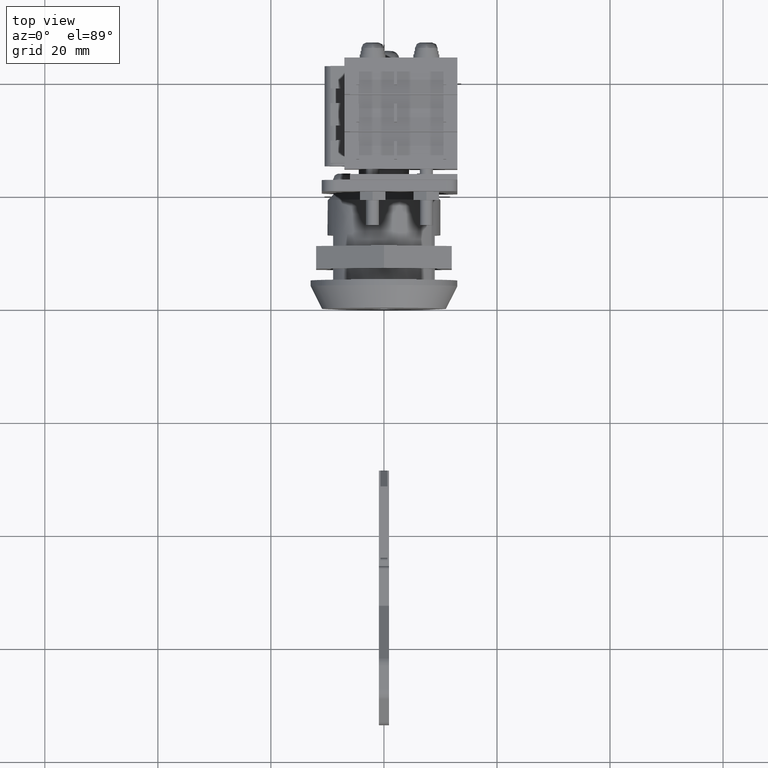
[diagram: clean part render]
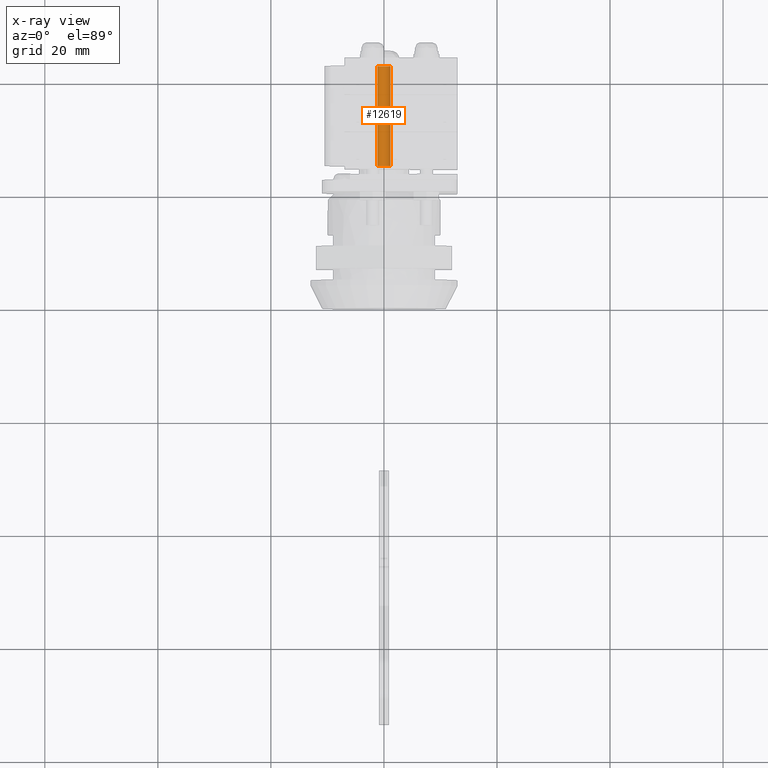
[diagram: x-ray — body ghosted, one internal face saturated and labeled with its STEP entity id]
A machine part, top view, then the same camera in x-ray: the body is ghosted and one INTERNAL B-rep face — a face not visible from any outside direction — is saturated and labeled: STEP entity #12619.
In plain terms, the highlighted face is a freeform B-spline surface patch.
Its self-contained STEP definition (entity closure, byte-faithful):
#12517=CARTESIAN_POINT('',(24.783483075000099,-1.141960955318216,0.135739369855272));
#12518=CARTESIAN_POINT('',(24.783483075000099,-1.145845757765897,0.103056937933674));
#12519=CARTESIAN_POINT('',(24.783483075000099,-1.147855018185147,0.070205820465085));
#12520=CARTESIAN_POINT('',(24.783483075000095,-1.218060838650232,-1.077649197720061));
#12521=CARTESIAN_POINT('',(24.783483075000099,-0.070205820465086,-1.147855018185147));
#12522=CARTESIAN_POINT('',(24.783483075000095,1.077649197720061,-1.218060838650233));
#12523=CARTESIAN_POINT('',(24.783483075000099,1.147855018185147,-0.070205820465086));
#12524=CARTESIAN_POINT('',(43.379542423125031,-1.141960955318216,0.135739369855272));
#12525=CARTESIAN_POINT('',(43.379542423125010,-1.145845757765897,0.103056937933674));
#12526=CARTESIAN_POINT('',(43.379542423125010,-1.147855018185147,0.070205820465085));
#12527=CARTESIAN_POINT('',(43.379542423125024,-1.218060838650232,-1.077649197720061));
#12528=CARTESIAN_POINT('',(43.379542423125010,-0.070205820465086,-1.147855018185147));
#12529=CARTESIAN_POINT('',(43.379542423125024,1.077649197720061,-1.218060838650233));
#12530=CARTESIAN_POINT('',(43.379542423125010,1.147855018185147,-0.070205820465086));
#12538=(BOUNDED_SURFACE()B_SPLINE_SURFACE(2,1,((#12517,#12524),(#12518,#12525),(#12519,#12526),(#12520,#12527),(#12521,#12528),(#12522,#12529),(#12523,#12530)),.UNSPECIFIED.,.F.,.F.,.U.)B_SPLINE_SURFACE_WITH_KNOTS((3,2,2,3),(2,2),(3.078760800517997,3.141592653589793,4.712388980384690,6.283185307179586),(0.0,18.596059348124921),.UNSPECIFIED.)GEOMETRIC_REPRESENTATION_ITEM()RATIONAL_B_SPLINE_SURFACE(((0.977505800795127,0.977505800795127),(0.988284271247462,0.988284271247462),(1.0,1.0),(0.707106781186548,0.707106781186548),(1.0,1.0),(0.707106781186548,0.707106781186548),(1.0,1.0)))REPRESENTATION_ITEM('')SURFACE());
#12539=CARTESIAN_POINT('',(25.225983000000099,-1.141960955238292,0.135739370527664));
#12540=VERTEX_POINT('',#12539);
#12541=CARTESIAN_POINT('',(25.225983000000099,0.0,-1.150000000000000));
#12542=VERTEX_POINT('',#12541);
#12543=CARTESIAN_POINT('',(25.225983000000102,-1.141960955238292,0.135739370527664));
#12544=CARTESIAN_POINT('',(25.225983000000102,-1.150000000000000,0.068107738279197));
#12545=CARTESIAN_POINT('',(25.225983000000099,-1.150000000000000,-1.110223E-016));
#12546=CARTESIAN_POINT('',(25.225983000000102,-1.150000000000000,-1.150000000000000));
#12547=CARTESIAN_POINT('',(25.225983000000099,0.0,-1.150000000000000));
#12555=(BOUNDED_CURVE()B_SPLINE_CURVE(2,(#12543,#12544,#12545,#12546,#12547),.UNSPECIFIED.,.F.,.U.)B_SPLINE_CURVE_WITH_KNOTS((3,2,3),(0.229562473316624,0.250000000000000,0.500000000000000),.UNSPECIFIED.)CURVE()GEOMETRIC_REPRESENTATION_ITEM()RATIONAL_B_SPLINE_CURVE((0.956026753797799,0.976055948100481,1.0,0.707106781186547,1.0))REPRESENTATION_ITEM(''));
#12556=EDGE_CURVE('',#12540,#12542,#12555,.T.);
#12557=ORIENTED_EDGE('',*,*,#12556,.F.);
#12558=CARTESIAN_POINT('',(42.925980000000003,-1.141960955238292,0.135739370527664));
#12559=VERTEX_POINT('',#12558);
#12560=CARTESIAN_POINT('',(25.225983000000099,-1.141960955238292,0.135739370527664));
#12561=CARTESIAN_POINT('',(42.925980000000003,-1.141960955238292,0.135739370527664));
#12562=QUASI_UNIFORM_CURVE('',1,(#12560,#12561),.UNSPECIFIED.,.F.,.U.);
#12563=EDGE_CURVE('',#12540,#12559,#12562,.T.);
#12564=ORIENTED_EDGE('',*,*,#12563,.T.);
#12565=CARTESIAN_POINT('',(42.925980000000003,0.0,-1.150000000000000));
#12566=VERTEX_POINT('',#12565);
#12567=CARTESIAN_POINT('',(42.925979999999996,-1.141960955238292,0.135739370527664));
#12568=CARTESIAN_POINT('',(42.925980000000003,-1.150000000000000,0.068107738279197));
#12569=CARTESIAN_POINT('',(42.925980000000003,-1.150000000000000,-1.110223E-016));
#12570=CARTESIAN_POINT('',(42.925979999999996,-1.150000000000000,-1.150000000000000));
#12571=CARTESIAN_POINT('',(42.925980000000003,0.0,-1.150000000000000));
#12579=(BOUNDED_CURVE()B_SPLINE_CURVE(2,(#12567,#12568,#12569,#12570,#12571),.UNSPECIFIED.,.F.,.U.)B_SPLINE_CURVE_WITH_KNOTS((3,2,3),(0.229562473316624,0.250000000000000,0.500000000000000),.UNSPECIFIED.)CURVE()GEOMETRIC_REPRESENTATION_ITEM()RATIONAL_B_SPLINE_CURVE((0.956026753797799,0.976055948100481,1.0,0.707106781186547,1.0))REPRESENTATION_ITEM(''));
#12580=EDGE_CURVE('',#12559,#12566,#12579,.T.);
#12581=ORIENTED_EDGE('',*,*,#12580,.T.);
#12582=CARTESIAN_POINT('',(42.925980000000003,1.147855018134226,-0.070205821297633));
#12583=VERTEX_POINT('',#12582);
#12584=CARTESIAN_POINT('',(42.925980000000003,0.0,-1.150000000000000));
#12585=CARTESIAN_POINT('',(42.925980000000010,1.081811975369325,-1.150000000000000));
#12586=CARTESIAN_POINT('',(42.925979999999996,1.147855018134226,-0.070205821297633));
#12594=(BOUNDED_CURVE()B_SPLINE_CURVE(2,(#12584,#12585,#12586),.UNSPECIFIED.,.F.,.U.)B_SPLINE_CURVE_WITH_KNOTS((3,3),(0.500000000000000,0.739332961991670),.UNSPECIFIED.)CURVE()GEOMETRIC_REPRESENTATION_ITEM()RATIONAL_B_SPLINE_CURVE((1.0,0.719603993576409,0.976072041136764))REPRESENTATION_ITEM(''));
#12595=EDGE_CURVE('',#12566,#12583,#12594,.T.);
#12596=ORIENTED_EDGE('',*,*,#12595,.T.);
#12597=CARTESIAN_POINT('',(25.225983000000110,1.147855018134226,-0.070205821297632));
#12598=VERTEX_POINT('',#12597);
#12599=CARTESIAN_POINT('',(25.225983000000110,1.147855018134226,-0.070205821297632));
#12600=CARTESIAN_POINT('',(42.925980000000003,1.147855018134226,-0.070205821297633));
#12601=QUASI_UNIFORM_CURVE('',1,(#12599,#12600),.UNSPECIFIED.,.F.,.U.);
#12602=EDGE_CURVE('',#12598,#12583,#12601,.T.);
#12603=ORIENTED_EDGE('',*,*,#12602,.F.);
#12604=CARTESIAN_POINT('',(25.225983000000099,0.0,-1.150000000000000));
#12605=CARTESIAN_POINT('',(25.225983000000102,1.081811975369325,-1.150000000000000));
#12606=CARTESIAN_POINT('',(25.225983000000106,1.147855018134226,-0.070205821297632));
#12614=(BOUNDED_CURVE()B_SPLINE_CURVE(2,(#12604,#12605,#12606),.UNSPECIFIED.,.F.,.U.)B_SPLINE_CURVE_WITH_KNOTS((3,3),(0.500000000000000,0.739332961991670),.UNSPECIFIED.)CURVE()GEOMETRIC_REPRESENTATION_ITEM()RATIONAL_B_SPLINE_CURVE((1.0,0.719603993576409,0.976072041136764))REPRESENTATION_ITEM(''));
#12615=EDGE_CURVE('',#12542,#12598,#12614,.T.);
#12616=ORIENTED_EDGE('',*,*,#12615,.F.);
#12617=EDGE_LOOP('',(#12557,#12564,#12581,#12596,#12603,#12616));
#12618=FACE_OUTER_BOUND('',#12617,.T.);
#12619=ADVANCED_FACE('',(#12618),#12538,.F.);